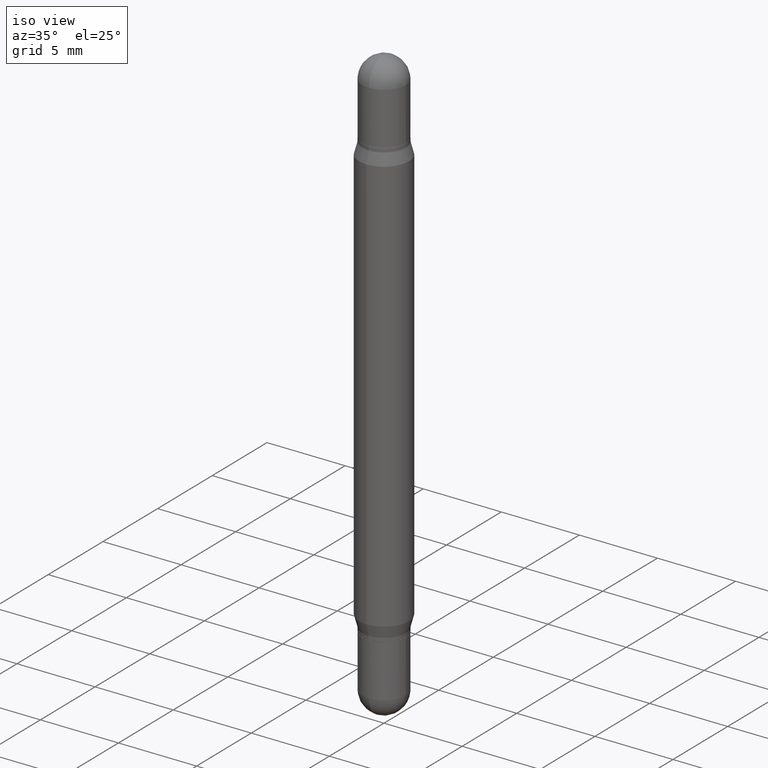
[diagram: clean part render]
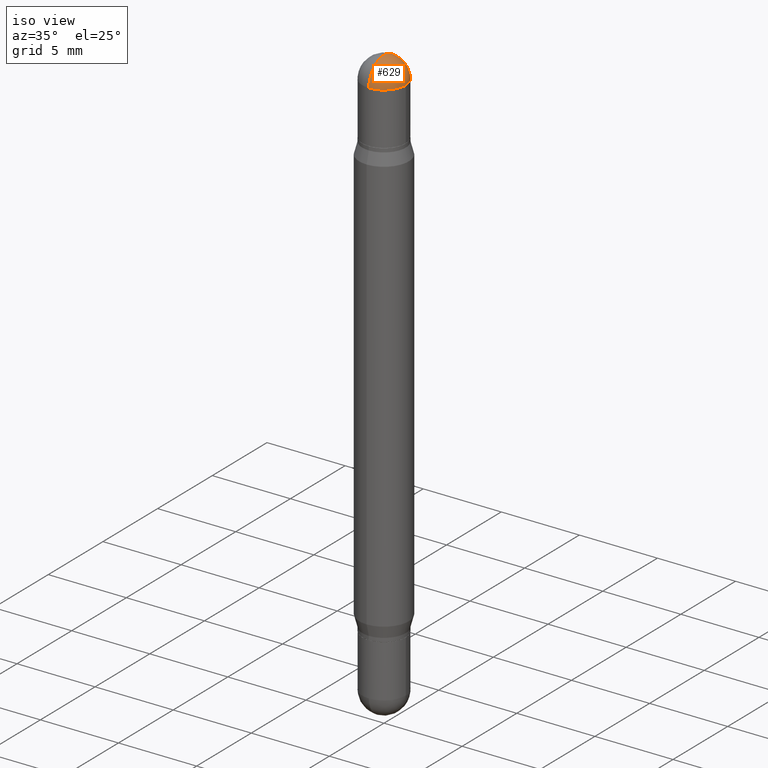
[diagram: same view with one face highlighted and labeled with its STEP entity id]
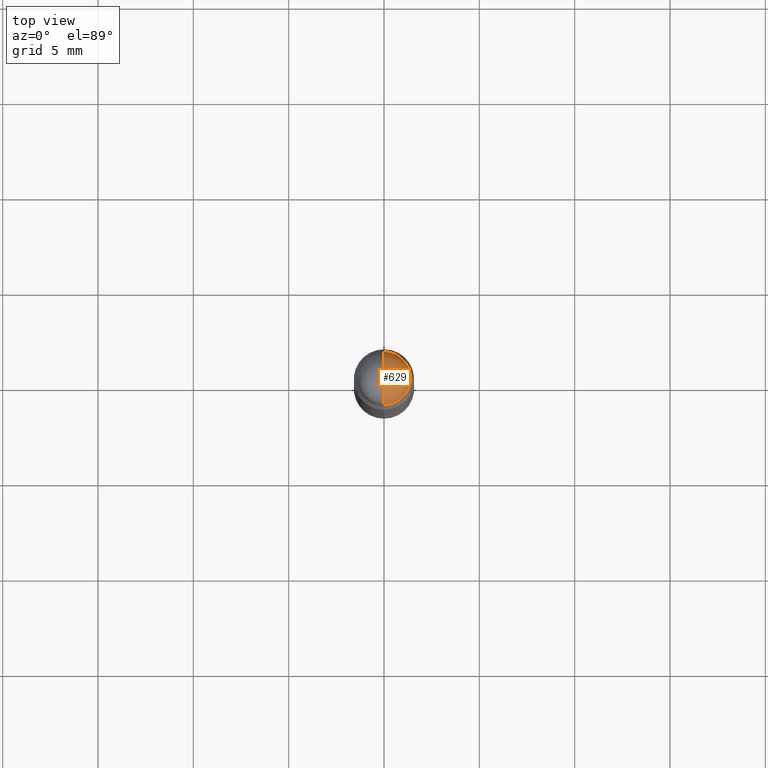
[diagram: same view with one face highlighted and labeled with its STEP entity id]
A machine part, iso view. The second image highlights one B-rep face of the part: STEP entity #629.
A second angle (top view) of the same face is appended — the face is thin or edge-on in the first view.
In plain terms, the highlighted spherical surface has radius 1.3894 mm.
Its self-contained STEP definition (entity closure, byte-faithful):
#9 = AXIS2_PLACEMENT_3D ( 'NONE', #87, #768, #185 ) ;
#11 = AXIS2_PLACEMENT_3D ( 'NONE', #1057, #265, #949 ) ;
#50 = VERTEX_POINT ( 'NONE', #360 ) ;
#87 = CARTESIAN_POINT ( 'NONE',  ( 3.534436065579377749E-29, -1.992350652426753183E-16, -0.05470000000000037332 ) ) ;
#155 = ORIENTED_EDGE ( 'NONE', *, *, #364, .T. ) ;
#185 = DIRECTION ( 'NONE',  ( 1.000000000000000000, -6.982962677686268288E-15, 0.000000000000000000 ) ) ;
#195 = CIRCLE ( 'NONE', #969, 0.05470000000000019291 ) ;
#219 = SPHERICAL_SURFACE ( 'NONE', #1104, 0.05470000000000019291 ) ;
#239 = ORIENTED_EDGE ( 'NONE', *, *, #1117, .T. ) ;
#265 = DIRECTION ( 'NONE',  ( 2.445468806185136597E-29, 3.479614466977828254E-15, 1.000000000000000000 ) ) ;
#278 = EDGE_CURVE ( 'NONE', #681, #288, #195, .T. ) ;
#288 = VERTEX_POINT ( 'NONE', #1050 ) ;
#298 = VERTEX_POINT ( 'NONE', #519 ) ;
#360 = CARTESIAN_POINT ( 'NONE',  ( 3.752692404781387717E-16, 0.05469999999999989454, -0.05470000000000056067 ) ) ;
#364 = EDGE_CURVE ( 'NONE', #298, #50, #920, .T. ) ;
#409 = DIRECTION ( 'NONE',  ( -1.000000000000000000, 6.860497997771530774E-15, 5.827999781331232286E-31 ) ) ;
#428 = ORIENTED_EDGE ( 'NONE', *, *, #712, .F. ) ;
#452 = AXIS2_PLACEMENT_3D ( 'NONE', #746, #409, #760 ) ;
#479 = ORIENTED_EDGE ( 'NONE', *, *, #278, .T. ) ;
#519 = CARTESIAN_POINT ( 'NONE',  ( 0.05470000000000000556, -8.113796207026979199E-16, -0.05470000000000037332 ) ) ;
#591 = CARTESIAN_POINT ( 'NONE',  ( 3.529758305977566399E-29, -2.059338832340114475E-16, -0.05470000000000037332 ) ) ;
#592 = CARTESIAN_POINT ( 'NONE',  ( 3.661186569874987869E-29, -1.894838088599157718E-17, -1.792775245842172799E-16 ) ) ;
#629 = ADVANCED_FACE ( 'NONE', ( #645 ), #219, .T. ) ;
#641 = DIRECTION ( 'NONE',  ( -6.982962677686265922E-15, -1.000000000000000000, 3.433538383261744671E-15 ) ) ;
#645 = FACE_OUTER_BOUND ( 'NONE', #1040, .T. ) ;
#681 = VERTEX_POINT ( 'NONE', #592 ) ;
#712 = EDGE_CURVE ( 'NONE', #681, #50, #1054, .T. ) ;
#746 = CARTESIAN_POINT ( 'NONE',  ( 3.529758305977566399E-29, -2.059338832340114475E-16, -0.05470000000000037332 ) ) ;
#760 = DIRECTION ( 'NONE',  ( -6.860497997771530774E-15, -1.000000000000000000, 0.000000000000000000 ) ) ;
#765 = DIRECTION ( 'NONE',  ( 1.000000000000000000, -6.982962677686265922E-15, -1.566701062080016245E-31 ) ) ;
#768 = DIRECTION ( 'NONE',  ( 2.445468806185136597E-29, 3.479614466977828254E-15, 1.000000000000000000 ) ) ;
#894 = DIRECTION ( 'NONE',  ( -1.000000000000000000, 6.982962677686265922E-15, 1.566701062080020624E-31 ) ) ;
#920 = CIRCLE ( 'NONE', #11, 0.05470000000000000556 ) ;
#949 = DIRECTION ( 'NONE',  ( 1.000000000000000000, -6.982962677686268288E-15, 0.000000000000000000 ) ) ;
#955 = DIRECTION ( 'NONE',  ( 6.982962677686266711E-15, 1.000000000000000000, 0.000000000000000000 ) ) ;
#969 = AXIS2_PLACEMENT_3D ( 'NONE', #591, #765, #955 ) ;
#1015 = CIRCLE ( 'NONE', #9, 0.05470000000000000556 ) ;
#1040 = EDGE_LOOP ( 'NONE', ( #428, #479, #239, #155 ) ) ;
#1050 = CARTESIAN_POINT ( 'NONE',  ( -3.819680584694040760E-16, -0.05470000000000030393, -0.05470000000000018597 ) ) ;
#1054 = CIRCLE ( 'NONE', #452, 0.05470000000000019291 ) ;
#1057 = CARTESIAN_POINT ( 'NONE',  ( 3.534436065579377749E-29, -1.992350652426753183E-16, -0.05470000000000037332 ) ) ;
#1080 = CARTESIAN_POINT ( 'NONE',  ( 3.529758305977566399E-29, -2.059338832340114475E-16, -0.05470000000000037332 ) ) ;
#1104 = AXIS2_PLACEMENT_3D ( 'NONE', #1080, #894, #641 ) ;
#1117 = EDGE_CURVE ( 'NONE', #288, #298, #1015, .T. ) ;